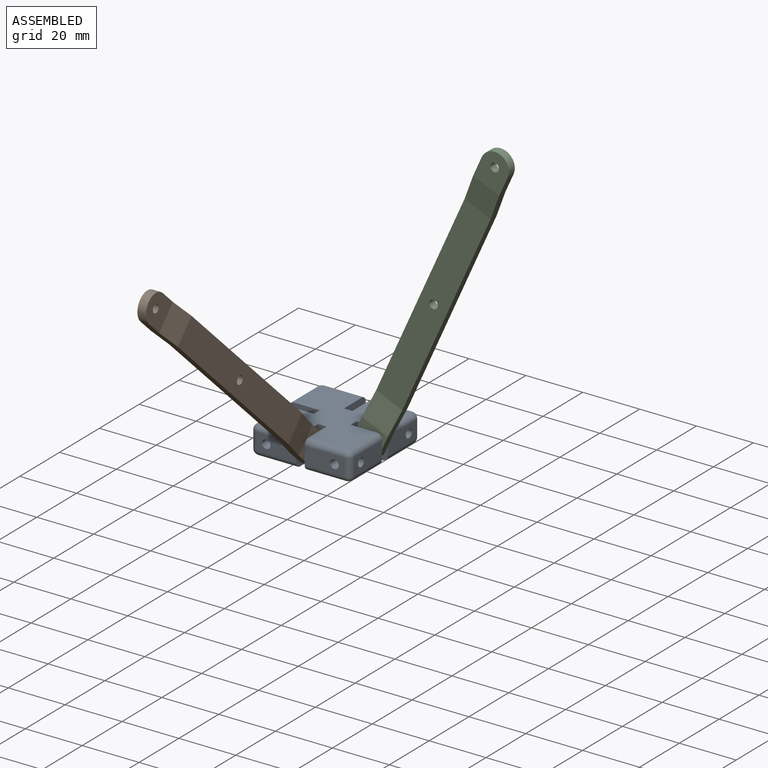
[diagram: assembled view]
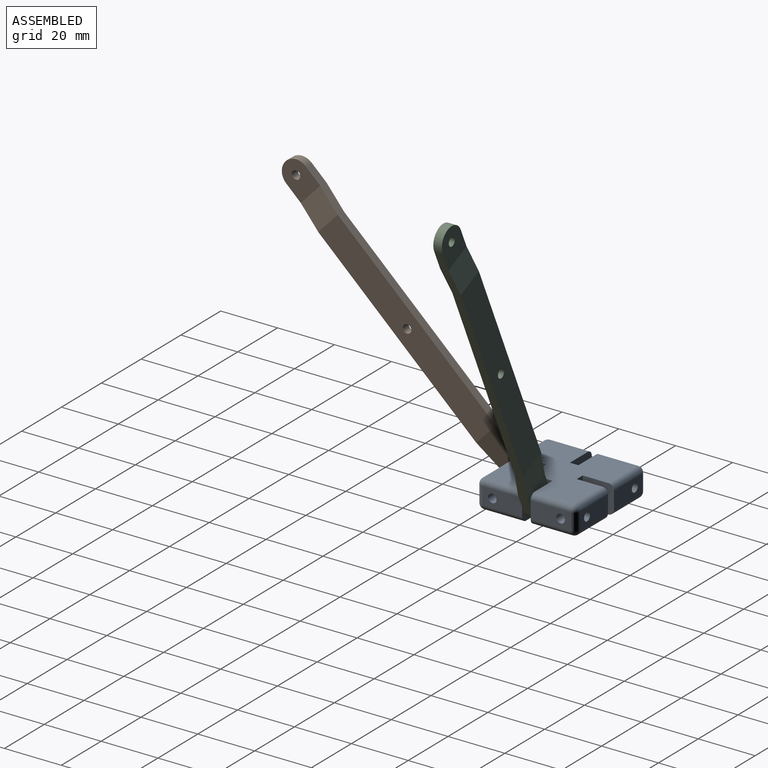
[diagram: assembled view, second angle]
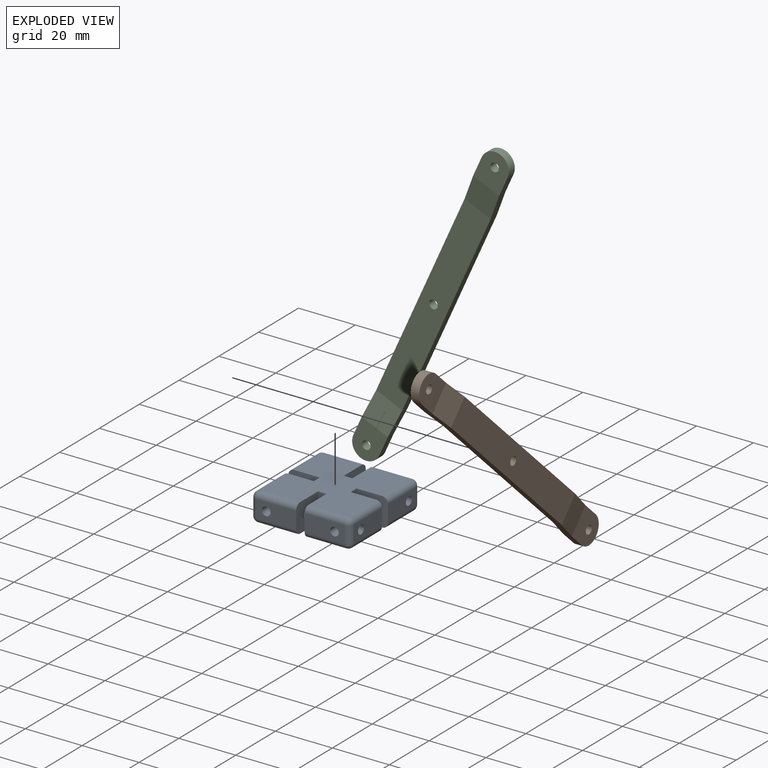
[diagram: exploded view]
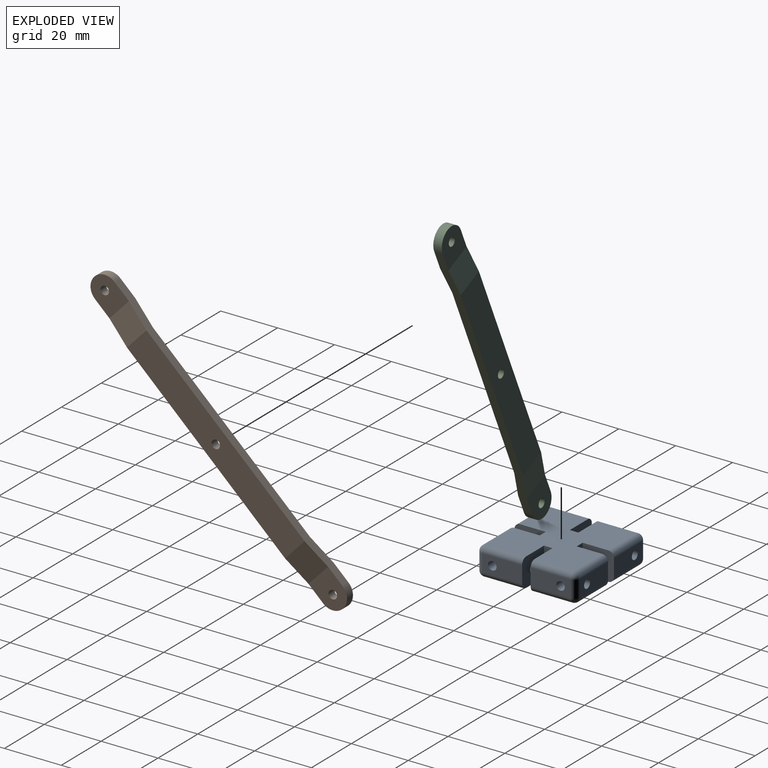
[diagram: exploded view, second angle]
ASSEMBLY  parts=3 mates=2
PART A: 66 faces, bbox 35x35x10 mm
  f0: cylinder r=1.5mm len=10.5mm, axis (-1,0,0), area 90mm2, adj f23,f40,f41
  f1: cylinder r=1.5mm len=5.5mm, axis (-1,0,0), area 42.8mm2, adj f18,f38,f39
  f2: cylinder r=1.5mm len=5.5mm, axis (-1,0,0), area 42.8mm2, adj f14,f36,f37
  f3: cylinder r=1.5mm len=10.5mm, axis (-1,0,0), area 90mm2, adj f9,f34,f35
  f4: plane 10x3mm, normal (1,0,0), area 30mm2, adj f5,f27,f28,f29
  f5: plane 11x10mm, normal (0,-1,0), area 101.2mm2, adj f4,f6,f28,f29,f34,f51,f62
  f6: plane 14x6mm, normal (1,0,0), area 76.9mm2, adj f5,f7,f33,f51,f62
  f7: cylinder r=2mm len=6mm, axis (0,0,-1), area 18.8mm2, adj f6,f8,f52,f61
  f8: plane 14x6mm, normal (0,1,0), area 76.9mm2, adj f7,f9,f35,f53,f60
  f9: plane 11x10mm, normal (-1,0,0), area 101.2mm2, adj f3,f8,f10,f28,f29,f53,f60
  f10: plane 10x3mm, normal (0,1,0), area 30mm2, adj f9,f11,f28,f29
  f11: plane 11x10mm, normal (1,0,0), area 101.2mm2, adj f10,f12,f28,f29,f32,f48,f59
  f12: plane 14x6mm, normal (0,1,0), area 76.9mm2, adj f11,f13,f37,f48,f59
  f13: cylinder r=2mm len=6mm, axis (0,0,-1), area 18.8mm2, adj f12,f14,f49,f58
  f14: plane 14x6mm, normal (-1,0,0), area 76.9mm2, adj f2,f13,f15,f50,f57
  f15: plane 11x10mm, normal (0,-1,0), area 101.2mm2, adj f14,f16,f28,f29,f36,f50,f57
  f16: plane 10x3mm, normal (-1,0,0), area 30mm2, adj f15,f17,f28,f29
  f17: plane 11x10mm, normal (0,1,0), area 101.2mm2, adj f16,f18,f28,f29,f39,f45,f56
  f18: plane 14x6mm, normal (-1,0,0), area 76.9mm2, adj f1,f17,f19,f45,f56
  f19: cylinder r=2mm len=6mm, axis (0,0,-1), area 18.8mm2, adj f18,f20,f46,f55
  f20: plane 14x6mm, normal (0,-1,0), area 76.9mm2, adj f19,f21,f38,f47,f54
  f21: plane 11x10mm, normal (1,0,0), area 101.2mm2, adj f20,f22,f28,f29,f31,f47,f54
  f22: plane 10x3mm, normal (0,-1,0), area 30mm2, adj f21,f23,f28,f29
  f23: plane 11x10mm, normal (-1,0,0), area 101.2mm2, adj f0,f22,f24,f28,f29,f42,f65
  f24: plane 14x6mm, normal (0,-1,0), area 76.9mm2, adj f23,f25,f40,f42,f65
  f25: cylinder r=2mm len=6mm, axis (0,0,-1), area 18.8mm2, adj f24,f26,f43,f64
  f26: plane 14x6mm, normal (1,0,0), area 76.9mm2, adj f25,f27,f30,f44,f63
  f27: plane 11x10mm, normal (0,1,0), area 101.2mm2, adj f4,f26,f28,f29,f41,f44,f63
  f28: plane 31x31mm, normal (0,0,1), area 853mm2, adj f4,f5,f9,f10,f11,f15,f16,f17
  f29: plane 31x31mm, normal (0,0,-1), area 853mm2, adj f4,f5,f9,f10,f11,f15,f16,f17
  f30: cylinder r=1.5mm len=5.5mm, axis (-1,0,0), area 42.8mm2, adj f26,f40,f41
  f31: cylinder r=1.5mm len=10.5mm, axis (-1,0,0), area 90mm2, adj f21,f38,f39
  f32: cylinder r=1.5mm len=10.5mm, axis (-1,0,0), area 90mm2, adj f11,f36,f37
  f33: cylinder r=1.5mm len=5.5mm, axis (-1,0,0), area 42.8mm2, adj f6,f34,f35
  f34: cylinder r=1.5mm len=10.5mm, axis (0,-1,0), area 90mm2, adj f3,f5,f33
  f35: cylinder r=1.5mm len=5.5mm, axis (0,-1,0), area 42.8mm2, adj f3,f8,f33
  f36: cylinder r=1.5mm len=10.5mm, axis (0,-1,0), area 90mm2, adj f2,f15,f32
  f37: cylinder r=1.5mm len=5.5mm, axis (0,-1,0), area 42.8mm2, adj f2,f12,f32
  f38: cylinder r=1.5mm len=5.5mm, axis (0,-1,0), area 42.8mm2, adj f1,f20,f31
  f39: cylinder r=1.5mm len=10.5mm, axis (0,-1,0), area 90mm2, adj f1,f17,f31
  f40: cylinder r=1.5mm len=5.5mm, axis (0,-1,0), area 42.8mm2, adj f0,f24,f30
  f41: cylinder r=1.5mm len=10.5mm, axis (0,-1,0), area 90mm2, adj f0,f27,f30
  f42: cylinder r=2mm len=14mm, axis (1,0,0), area 44mm2, adj f23,f24,f29,f43
  f43: sphere r=2mm, area 6.3mm2, adj f25,f42,f44
  f44: cylinder r=2mm len=14mm, axis (0,1,0), area 44mm2, adj f26,f27,f29,f43
  f45: cylinder r=2mm len=14mm, axis (0,-1,0), area 44mm2, adj f17,f18,f29,f46
  f46: sphere r=2mm, area 6.3mm2, adj f19,f45,f47
  f47: cylinder r=2mm len=14mm, axis (1,0,0), area 44mm2, adj f20,f21,f29,f46
  f48: cylinder r=2mm len=14mm, axis (-1,0,0), area 44mm2, adj f11,f12,f29,f49
  f49: sphere r=2mm, area 6.3mm2, adj f13,f48,f50
  f50: cylinder r=2mm len=14mm, axis (0,-1,0), area 44mm2, adj f14,f15,f29,f49
  f51: cylinder r=2mm len=14mm, axis (0,1,0), area 44mm2, adj f5,f6,f29,f52
  f52: sphere r=2mm, area 6.3mm2, adj f7,f51,f53
  f53: cylinder r=2mm len=14mm, axis (-1,0,0), area 44mm2, adj f8,f9,f29,f52
  f54: cylinder r=2mm len=14mm, axis (-1,0,0), area 44mm2, adj f20,f21,f28,f55
  f55: sphere r=2mm, area 6.3mm2, adj f19,f54,f56
  f56: cylinder r=2mm len=14mm, axis (0,1,0), area 44mm2, adj f17,f18,f28,f55
  f57: cylinder r=2mm len=14mm, axis (0,1,0), area 44mm2, adj f14,f15,f28,f58
  f58: sphere r=2mm, area 6.3mm2, adj f13,f57,f59
  f59: cylinder r=2mm len=14mm, axis (1,0,0), area 44mm2, adj f11,f12,f28,f58
  f60: cylinder r=2mm len=14mm, axis (1,0,0), area 44mm2, adj f8,f9,f28,f61
  f61: sphere r=2mm, area 6.3mm2, adj f7,f60,f62
  f62: cylinder r=2mm len=14mm, axis (0,-1,0), area 44mm2, adj f5,f6,f28,f61
  f63: cylinder r=2mm len=14mm, axis (0,-1,0), area 44mm2, adj f26,f27,f28,f64
  f64: sphere r=2mm, area 6.3mm2, adj f25,f63,f65
  f65: cylinder r=2mm len=14mm, axis (-1,0,0), area 44mm2, adj f23,f24,f28,f64
PART B: 17 faces, bbox 4.5x10x120 mm
  f0: plane 12.23x10mm, normal (-1,0,0), area 104.5mm2, adj f1,f6,f7,f8,f9
  f1: plane 10x9.89mm, normal (-0.99,0,-0.15), area 100mm2, adj f0,f2,f6,f7
  f2: plane 75.77x10mm, normal (-1,0,0), area 750.7mm2, adj f1,f6,f7,f10,f12
  f3: plane 76.23x10mm, normal (1,0,0), area 755.2mm2, adj f4,f6,f7,f10,f13
  f4: plane 10x9.89mm, normal (0.99,0,0.15), area 100mm2, adj f3,f5,f6,f7
  f5: plane 12x10mm, normal (1,0,0), area 102.2mm2, adj f4,f6,f7,f8,f9
  f6: plane 110x4.5mm, normal (0,-1,0), area 330.7mm2, adj f0,f1,f2,f3,f4,f5,f8,f11
  f7: plane 110x4.5mm, normal (0,1,0), area 330.7mm2, adj f0,f1,f2,f3,f4,f5,f8,f11
  f8: cylinder r=5mm len=10mm, axis (1,0,0), area 47.1mm2, adj f0,f5,f6,f7
  f9: cylinder r=1.5mm len=3mm, axis (1,0,0), area 28.3mm2, adj f0,f5
  f10: cylinder r=1.5mm len=3mm, axis (1,0,0), area 28.3mm2, adj f2,f3
  f11: plane 12.23x10mm, normal (-1,0,0), area 104.5mm2, adj f6,f7,f12,f15,f16
  f12: plane 10x9.89mm, normal (-0.99,0,0.15), area 100mm2, adj f2,f6,f7,f11
  f13: plane 10x9.89mm, normal (0.99,0,-0.15), area 100mm2, adj f3,f6,f7,f14
  f14: plane 12x10mm, normal (1,0,0), area 102.2mm2, adj f6,f7,f13,f15,f16
  f15: cylinder r=5mm len=10mm, axis (1,0,0), area 47.1mm2, adj f6,f7,f11,f14
  f16: cylinder r=1.5mm len=3mm, axis (1,0,0), area 28.3mm2, adj f11,f14
PART C: same geometry as B
PLACE A t=(-44.14,-92.35,21.71)mm fixed
PLACE B rot(axis=(-1,0,0),133.2deg) t=(-25.14,-86.62,19.64)mm
PLACE C rot(axis=(-0.7,-0.7,0.15),162.9deg) t=(-12.13,-73.35,20.1)mm
MATE revolute C.f8 <-> A.f34  axis (0,1,0) through (-14.64,-73.35,26.71)mm
MATE revolute B.f8 <-> A.f0  axis (1,0,0) through (-25.14,-86.85,26.71)mm
